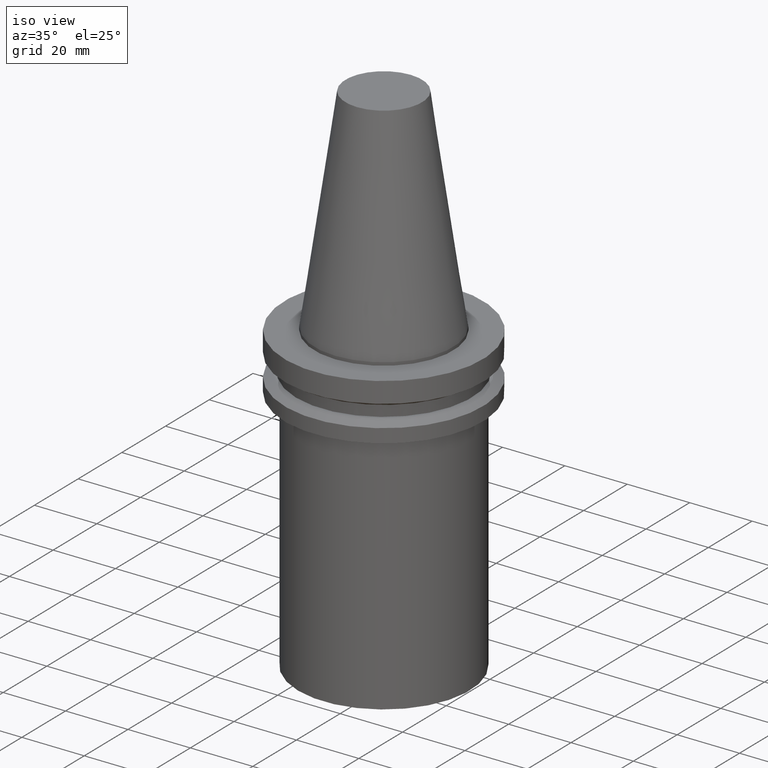
[diagram: clean part render]
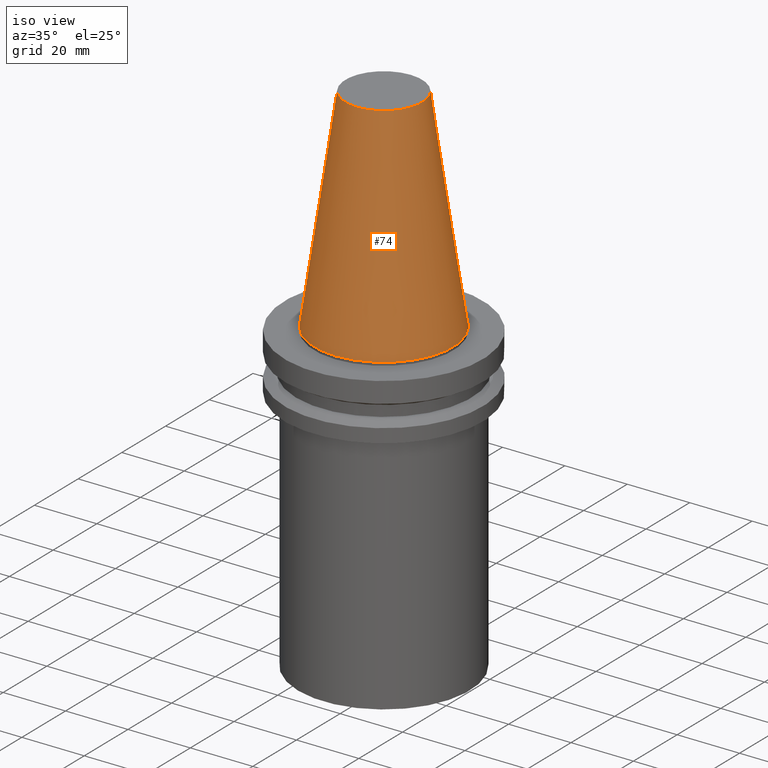
[diagram: same view with one face highlighted and labeled with its STEP entity id]
A machine part, iso view. The second image highlights one B-rep face of the part: STEP entity #74.
In plain terms, the highlighted conical surface has half-angle 8.297 deg.
Its self-contained STEP definition (entity closure, byte-faithful):
#66=EDGE_CURVE('Unnamed[1]',#165,#165,#166,.T.);
#74=ADVANCED_FACE('Unnamed[1]',(#176,#177),#178,.T.);
#121=EDGE_CURVE('Unnamed[1]',#250,#250,#251,.T.);
#165=VERTEX_POINT('',#295);
#166=CIRCLE('',#296,22.225);
#176=FACE_BOUND('',#309,.T.);
#177=FACE_BOUND('',#310,.T.);
#178=CONICAL_SURFACE('',#311,17.2484375007384,0.144812498217751);
#250=VERTEX_POINT('',#400);
#251=CIRCLE('',#401,12.2718750014769);
#295=CARTESIAN_POINT('',(-2.73944275289641E-031,22.225,2.72177751110499E-015));
#296=AXIS2_PLACEMENT_3D('',#438,#439,#440);
#309=EDGE_LOOP('',(#450));
#310=EDGE_LOOP('',(#451));
#311=AXIS2_PLACEMENT_3D('',#452,#453,#454);
#400=CARTESIAN_POINT('',(-4.17910720209034E-015,12.2718750014769,68.25));
#401=AXIS2_PLACEMENT_3D('',#533,#534,#535);
#438=CARTESIAN_POINT('',(0.0,0.0,0.0));
#439=DIRECTION('',(6.12323399573677E-017,1.22464679914735E-016,-1.0));
#440=DIRECTION('',(-1.23259516440783E-032,1.0,1.22464679914735E-016));
#450=ORIENTED_EDGE('',*,*,#66,.F.);
#451=ORIENTED_EDGE('',*,*,#121,.T.);
#452=CARTESIAN_POINT('',(-2.08955360104517E-015,-4.17910720209034E-015,34.125));
#453=DIRECTION('',(6.12323399573677E-017,1.22464679914735E-016,-1.0));
#454=DIRECTION('',(-1.23259516440783E-032,1.0,1.22464679914735E-016));
#533=CARTESIAN_POINT('',(-4.17910720209034E-015,-8.35821440418068E-015,68.25));
#534=DIRECTION('',(6.12323399573677E-017,1.22464679914735E-016,-1.0));
#535=DIRECTION('',(-1.23259516440783E-032,1.0,1.22464679914735E-016));